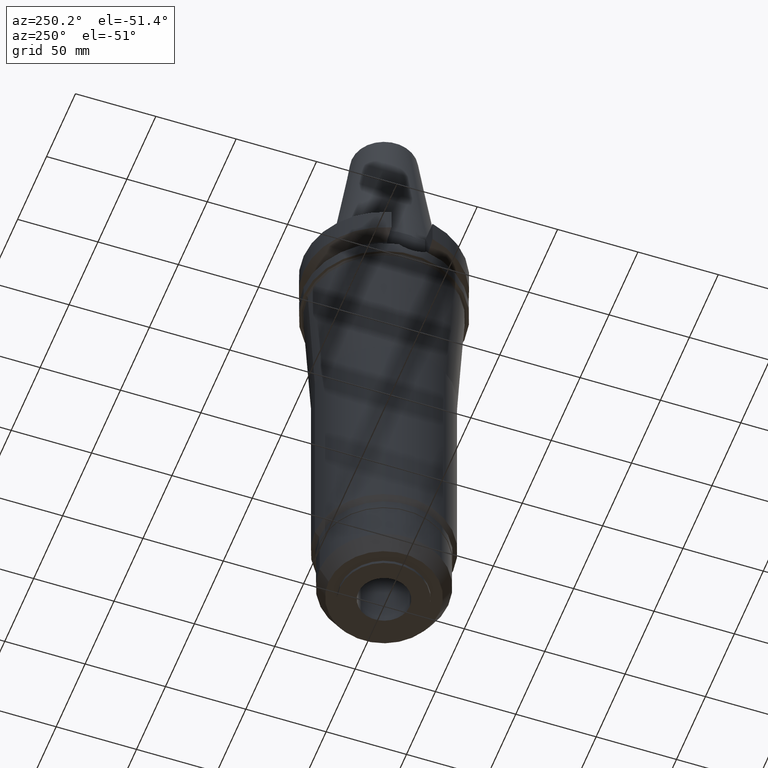
[diagram: clean part render]
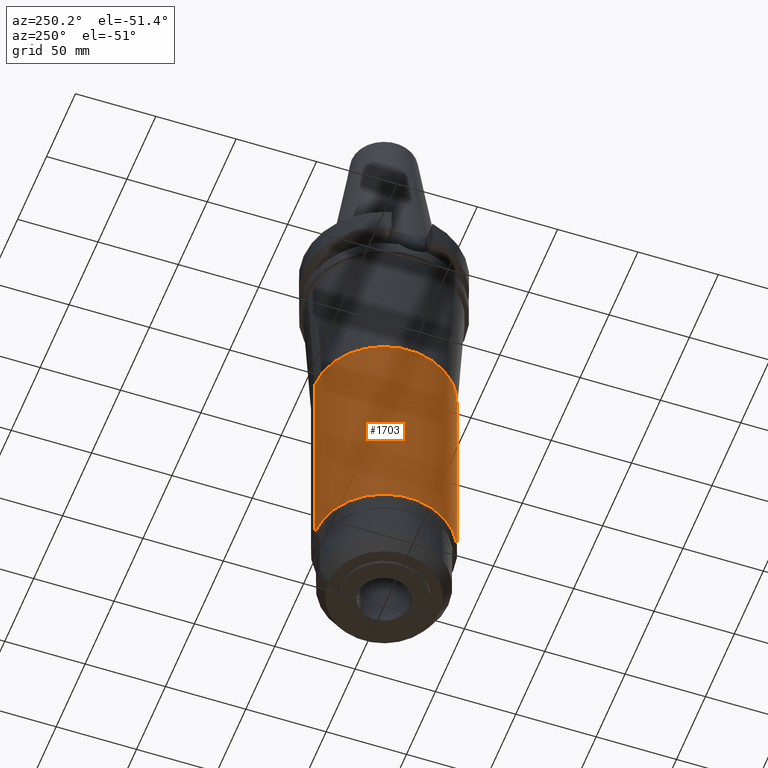
[diagram: same view with one face highlighted and labeled with its STEP entity id]
A machine part, auxiliary view. The second image highlights one B-rep face of the part: STEP entity #1703.
In plain terms, the highlighted cylindrical surface (partial cylindrical patch) has radius 43 mm, axis along (0, 0, -1).
Its self-contained STEP definition (entity closure, byte-faithful):
#368=CARTESIAN_POINT('',(0.E0,-1.949127447667E-14,-2.574E2));
#369=DIRECTION('',(0.E0,0.E0,1.E0));
#370=DIRECTION('',(0.E0,1.E0,0.E0));
#371=AXIS2_PLACEMENT_3D('',#368,#369,#370);
#414=DIRECTION('',(0.E0,-6.766584723496E-14,-1.E0));
#415=VECTOR('',#414,1.384E2);
#416=CARTESIAN_POINT('',(0.E0,4.3E1,-1.19E2));
#417=LINE('',#416,#415);
#421=DIRECTION('',(0.E0,6.746048806278E-14,-1.E0));
#422=VECTOR('',#421,1.384E2);
#423=CARTESIAN_POINT('',(0.E0,-4.3E1,-1.19E2));
#424=LINE('',#423,#422);
#435=CARTESIAN_POINT('',(0.E0,0.E0,-1.19E2));
#436=DIRECTION('',(0.E0,0.E0,-1.E0));
#437=DIRECTION('',(0.E0,-1.E0,0.E0));
#438=AXIS2_PLACEMENT_3D('',#435,#436,#437);
#1189=CARTESIAN_POINT('',(0.E0,4.299999999999E1,-2.574E2));
#1190=VERTEX_POINT('',#1189);
#1191=CARTESIAN_POINT('',(0.E0,-4.299999999998E1,-2.574E2));
#1192=VERTEX_POINT('',#1191);
#1193=CARTESIAN_POINT('',(0.E0,4.3E1,-1.19E2));
#1194=VERTEX_POINT('',#1193);
#1195=CARTESIAN_POINT('',(0.E0,-4.3E1,-1.19E2));
#1196=VERTEX_POINT('',#1195);
#1691=CARTESIAN_POINT('',(0.E0,2.718838358787E-14,1.2201E2));
#1692=DIRECTION('',(0.E0,0.E0,-1.E0));
#1693=DIRECTION('',(0.E0,-1.E0,0.E0));
#1694=AXIS2_PLACEMENT_3D('',#1691,#1692,#1693);
#1695=CYLINDRICAL_SURFACE('',#1694,4.3E1);
#1696=ORIENTED_EDGE('',*,*,#1681,.F.);
#1698=ORIENTED_EDGE('',*,*,#1697,.F.);
#1699=ORIENTED_EDGE('',*,*,#1684,.T.);
#1700=ORIENTED_EDGE('',*,*,#1655,.F.);
#1701=EDGE_LOOP('',(#1696,#1698,#1699,#1700));
#1702=FACE_OUTER_BOUND('',#1701,.F.);
#372=CIRCLE('',#371,4.299999999998E1);
#439=CIRCLE('',#438,4.3E1);
#1655=EDGE_CURVE('',#1190,#1192,#372,.T.);
#1681=EDGE_CURVE('',#1194,#1190,#417,.T.);
#1684=EDGE_CURVE('',#1196,#1192,#424,.T.);
#1697=EDGE_CURVE('',#1196,#1194,#439,.T.);
#1703=ADVANCED_FACE('',(#1702),#1695,.T.);